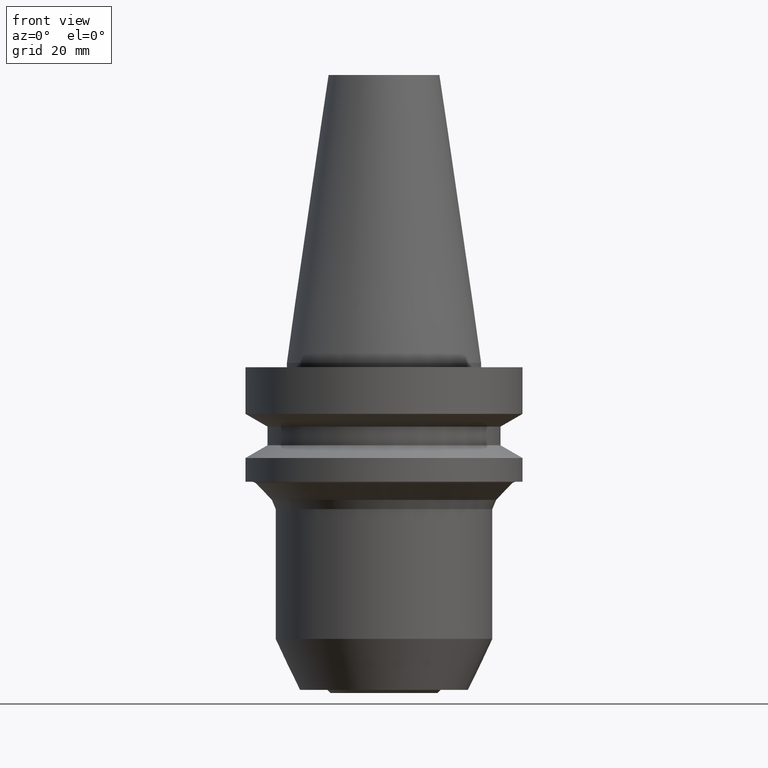
[diagram: clean part render]
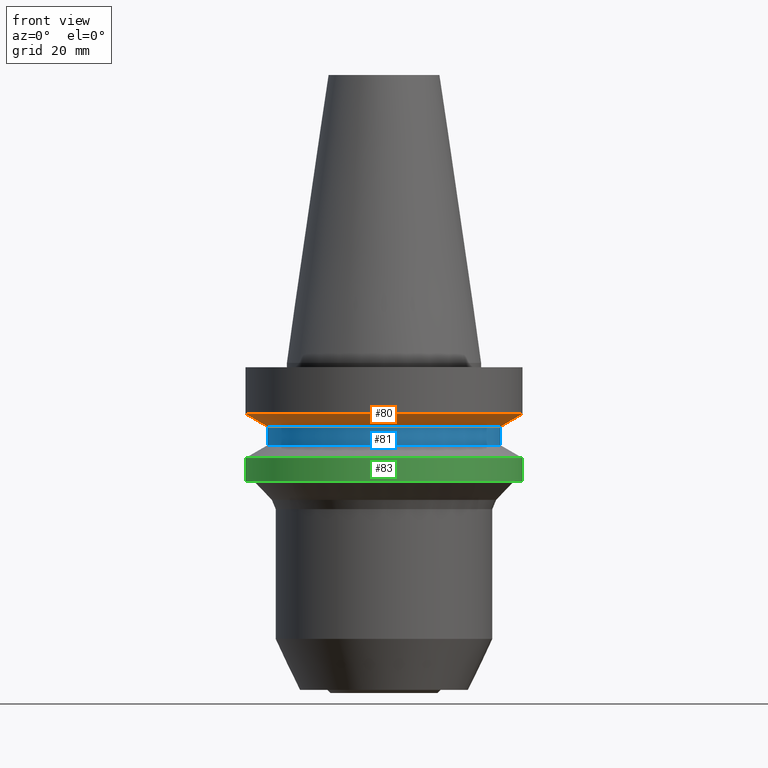
[diagram: same view with three faces highlighted in distinct colors, each labeled with its STEP entity id]
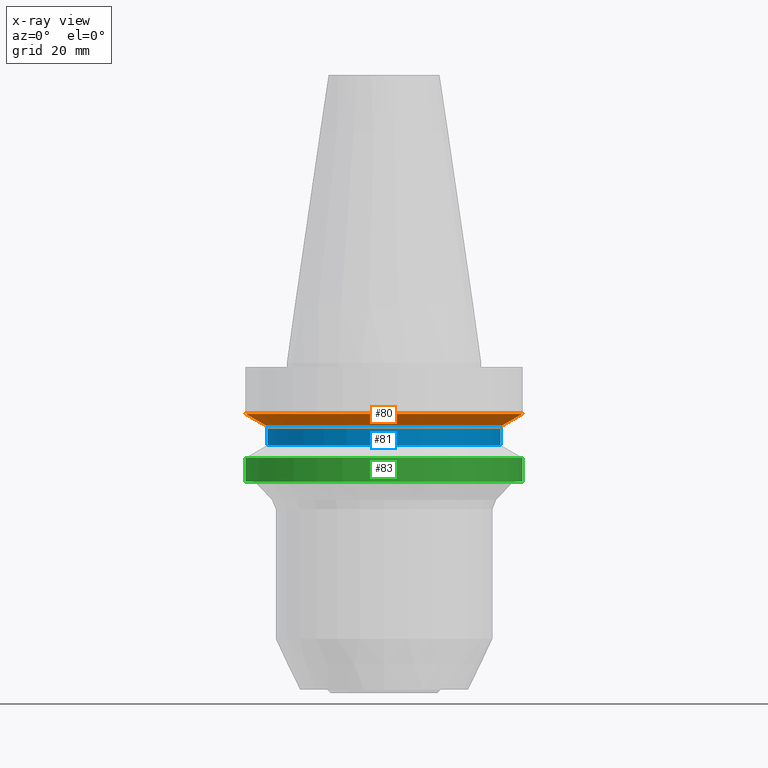
[diagram: x-ray of the same camera — body ghosted, the three highlighted faces saturated]
A machine part, front view with three faces highlighted in distinct colors.
The next image is the same camera in x-ray (body ghosted, the three faces saturated) — at least one of them is partly hidden behind the body in this view.
Their STEP definitions:

[orange] entity #80 — the highlighted conical surface has half-angle 60 deg.
#80=ADVANCED_FACE('',(#108,#109),#110,.T.);
#108=FACE_BOUND('',#160,.T.);
#109=FACE_BOUND('',#161,.T.);
#110=CONICAL_SURFACE('',#162,29.0000000000106,1.04719755119673);
#160=EDGE_LOOP('',(#222));
#161=EDGE_LOOP('',(#223));
#162=AXIS2_PLACEMENT_3D('',#224,#225,#226);
#222=ORIENTED_EDGE('',*,*,#291,.F.);
#223=ORIENTED_EDGE('',*,*,#290,.T.);
#224=CARTESIAN_POINT('',(7.9868539427443E-016,1.59737078854886E-015,-13.0435223417969));
#225=DIRECTION('',(-6.12323399573676E-017,-1.22464679914735E-016,1.0));
#226=DIRECTION('',(-1.23259516440783E-032,1.0,1.22464679914735E-016));
#290=EDGE_CURVE('',#311,#311,#312,.T.);
#291=EDGE_CURVE('',#313,#313,#314,.T.);
#311=VERTEX_POINT('',#345);
#312=CIRCLE('',#346,31.5000000000116);
#313=VERTEX_POINT('',#347);
#314=CIRCLE('',#348,26.5000000000097);
#345=CARTESIAN_POINT('',(7.10304124380682E-016,31.5000000000116,-11.6001466688228));
#346=AXIS2_PLACEMENT_3D('',#383,#384,#385);
#347=CARTESIAN_POINT('',(8.87066664168176E-016,26.5000000000097,-14.4868980147711));
#348=AXIS2_PLACEMENT_3D('',#386,#387,#388);
#383=CARTESIAN_POINT('',(7.10304124380683E-016,1.42060824876136E-015,-11.6001466688228));
#384=DIRECTION('',(6.12323399573677E-017,1.22464679914735E-016,-1.0));
#385=DIRECTION('',(-1.23259516440783E-032,1.0,1.22464679914735E-016));
#386=CARTESIAN_POINT('',(8.87066664168176E-016,1.77413332833635E-015,-14.4868980147711));
#387=DIRECTION('',(6.12323399573677E-017,1.22464679914735E-016,-1.0));
#388=DIRECTION('',(-1.23259516440783E-032,1.0,1.22464679914735E-016));

[blue] entity #81 — the highlighted cylindrical surface (bore or boss wall) has radius 26.5 mm, axis along (-0, -0, 1).
#81=ADVANCED_FACE('',(#111,#112),#113,.T.);
#111=FACE_BOUND('',#163,.T.);
#112=FACE_BOUND('',#164,.T.);
#113=CYLINDRICAL_SURFACE('',#165,26.5000000000094);
#163=EDGE_LOOP('',(#227));
#164=EDGE_LOOP('',(#228));
#165=AXIS2_PLACEMENT_3D('',#229,#230,#231);
#227=ORIENTED_EDGE('',*,*,#292,.F.);
#228=ORIENTED_EDGE('',*,*,#291,.T.);
#229=CARTESIAN_POINT('',(1.01645684329261E-015,2.03291368658521E-015,-16.6000000000049));
#230=DIRECTION('',(-6.12323399573677E-017,-1.22464679914735E-016,1.0));
#231=DIRECTION('',(-1.23259516440783E-032,1.0,1.22464679914735E-016));
#291=EDGE_CURVE('',#313,#313,#314,.T.);
#292=EDGE_CURVE('',#315,#315,#316,.T.);
#313=VERTEX_POINT('',#347);
#314=CIRCLE('',#348,26.5000000000097);
#315=VERTEX_POINT('',#349);
#316=CIRCLE('',#350,26.500000000009);
#347=CARTESIAN_POINT('',(8.87066664168176E-016,26.5000000000097,-14.4868980147711));
#348=AXIS2_PLACEMENT_3D('',#386,#387,#388);
#349=CARTESIAN_POINT('',(1.14584702241703E-015,26.500000000009,-18.7131019852388));
#350=AXIS2_PLACEMENT_3D('',#389,#390,#391);
#386=CARTESIAN_POINT('',(8.87066664168176E-016,1.77413332833635E-015,-14.4868980147711));
#387=DIRECTION('',(6.12323399573677E-017,1.22464679914735E-016,-1.0));
#388=DIRECTION('',(-1.23259516440783E-032,1.0,1.22464679914735E-016));
#389=CARTESIAN_POINT('',(1.14584702241703E-015,2.29169404483407E-015,-18.7131019852388));
#390=DIRECTION('',(6.12323399573677E-017,1.22464679914735E-016,-1.0));
#391=DIRECTION('',(-1.23259516440783E-032,1.0,1.22464679914735E-016));

[green] entity #83 — the highlighted cylindrical surface (bore or boss wall) has radius 31.5 mm, axis along (-0, -0, 1).
#83=ADVANCED_FACE('',(#117,#118),#119,.T.);
#117=FACE_BOUND('',#169,.T.);
#118=FACE_BOUND('',#170,.T.);
#119=CYLINDRICAL_SURFACE('',#171,31.5000000000092);
#169=EDGE_LOOP('',(#237));
#170=EDGE_LOOP('',(#238));
#171=AXIS2_PLACEMENT_3D('',#239,#240,#241);
#237=ORIENTED_EDGE('',*,*,#294,.F.);
#238=ORIENTED_EDGE('',*,*,#293,.T.);
#239=CARTESIAN_POINT('',(1.48794137052687E-015,2.97588274105374E-015,-24.2999266655959));
#240=DIRECTION('',(-6.12323399573677E-017,-1.22464679914735E-016,1.0));
#241=DIRECTION('',(-1.23259516440783E-032,1.0,1.22464679914735E-016));
#293=EDGE_CURVE('',#317,#317,#318,.T.);
#294=EDGE_CURVE('',#319,#319,#320,.T.);
#317=VERTEX_POINT('',#351);
#318=CIRCLE('',#352,31.5000000000101);
#319=VERTEX_POINT('',#353);
#320=CIRCLE('',#354,31.5000000000082);
#351=CARTESIAN_POINT('',(1.32260956220466E-015,31.5000000000101,-21.5998533311892));
#352=AXIS2_PLACEMENT_3D('',#392,#393,#394);
#353=CARTESIAN_POINT('',(1.65327317884909E-015,31.5000000000082,-27.0000000000026));
#354=AXIS2_PLACEMENT_3D('',#395,#396,#397);
#392=CARTESIAN_POINT('',(1.32260956220466E-015,2.64521912440932E-015,-21.5998533311892));
#393=DIRECTION('',(6.12323399573677E-017,1.22464679914735E-016,-1.0));
#394=DIRECTION('',(-1.23259516440783E-032,1.0,1.22464679914735E-016));
#395=CARTESIAN_POINT('',(1.65327317884909E-015,3.30654635769817E-015,-27.0000000000026));
#396=DIRECTION('',(6.12323399573676E-017,1.22464679914735E-016,-1.0));
#397=DIRECTION('',(-1.23259516440783E-032,1.0,1.22464679914735E-016));